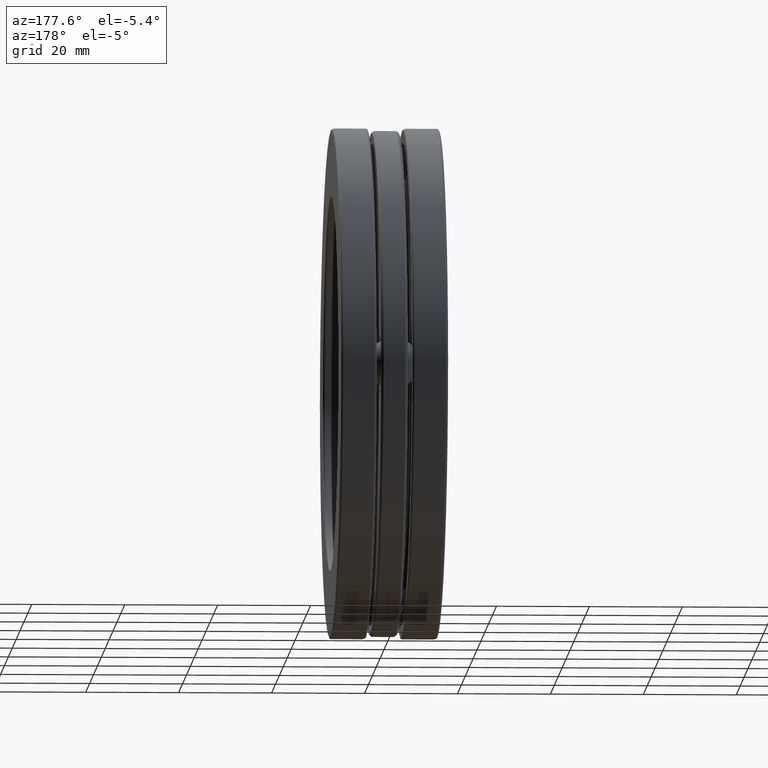
[diagram: clean part render]
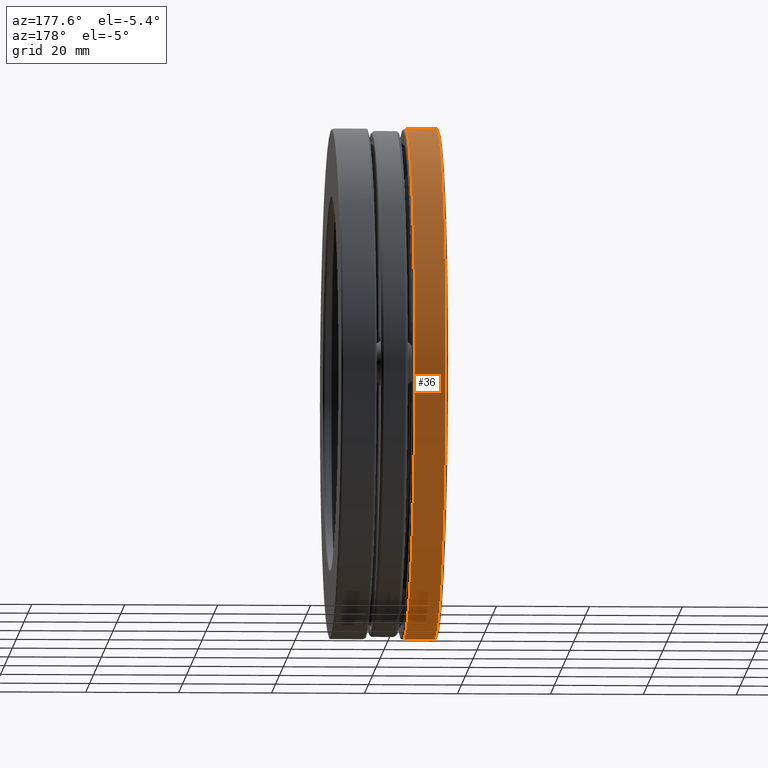
[diagram: same view with one face highlighted and labeled with its STEP entity id]
A machine part, auxiliary view. The second image highlights one B-rep face of the part: STEP entity #36.
In plain terms, the highlighted cylindrical surface (bore or boss wall) has radius 55.0037 mm, axis along (-1, -0, -0).
Its self-contained STEP definition (entity closure, byte-faithful):
#30 = VERTEX_POINT ( 'NONE', #98 ) ;
#36 = ADVANCED_FACE ( 'NONE', ( #229, #716 ), #521, .T. ) ;
#59 = DIRECTION ( 'NONE',  ( 0.0000000000000000000, 0.0000000000000000000, 1.000000000000000000 ) ) ;
#69 = ORIENTED_EDGE ( 'NONE', *, *, #602, .F. ) ;
#98 = CARTESIAN_POINT ( 'NONE',  ( -0.1710030199999997800, 0.0000000000000000000, 2.165500000000000600 ) ) ;
#117 = CARTESIAN_POINT ( 'NONE',  ( -0.4329999999999999400, 0.0000000000000000000, 2.165500000000000600 ) ) ;
#188 = CARTESIAN_POINT ( 'NONE',  ( 0.0000000000000000000, 0.0000000000000000000, 0.0000000000000000000 ) ) ;
#197 = ORIENTED_EDGE ( 'NONE', *, *, #326, .T. ) ;
#229 = FACE_OUTER_BOUND ( 'NONE', #424, .T. ) ;
#259 = DIRECTION ( 'NONE',  ( -1.000000000000000000, -0.0000000000000000000, -0.0000000000000000000 ) ) ;
#267 = CIRCLE ( 'NONE', #821, 2.165500000000000600 ) ;
#314 = CIRCLE ( 'NONE', #752, 2.165500000000000600 ) ;
#326 = EDGE_CURVE ( 'NONE', #30, #30, #314, .T. ) ;
#386 = DIRECTION ( 'NONE',  ( 0.0000000000000000000, 0.0000000000000000000, 1.000000000000000000 ) ) ;
#424 = EDGE_LOOP ( 'NONE', ( #69 ) ) ;
#432 = DIRECTION ( 'NONE',  ( -1.000000000000000000, -0.0000000000000000000, -0.0000000000000000000 ) ) ;
#492 = CARTESIAN_POINT ( 'NONE',  ( -0.4329999999999999400, 0.0000000000000000000, 0.0000000000000000000 ) ) ;
#513 = CARTESIAN_POINT ( 'NONE',  ( -0.1710030199999997800, 0.0000000000000000000, 0.0000000000000000000 ) ) ;
#521 = CYLINDRICAL_SURFACE ( 'NONE', #680, 2.165500000000000600 ) ;
#564 = EDGE_LOOP ( 'NONE', ( #197 ) ) ;
#602 = EDGE_CURVE ( 'NONE', #604, #604, #267, .T. ) ;
#604 = VERTEX_POINT ( 'NONE', #117 ) ;
#646 = DIRECTION ( 'NONE',  ( 0.0000000000000000000, 0.0000000000000000000, 1.000000000000000000 ) ) ;
#680 = AXIS2_PLACEMENT_3D ( 'NONE', #188, #432, #59 ) ;
#715 = DIRECTION ( 'NONE',  ( -1.000000000000000000, -0.0000000000000000000, -0.0000000000000000000 ) ) ;
#716 = FACE_OUTER_BOUND ( 'NONE', #564, .T. ) ;
#752 = AXIS2_PLACEMENT_3D ( 'NONE', #513, #715, #386 ) ;
#821 = AXIS2_PLACEMENT_3D ( 'NONE', #492, #259, #646 ) ;